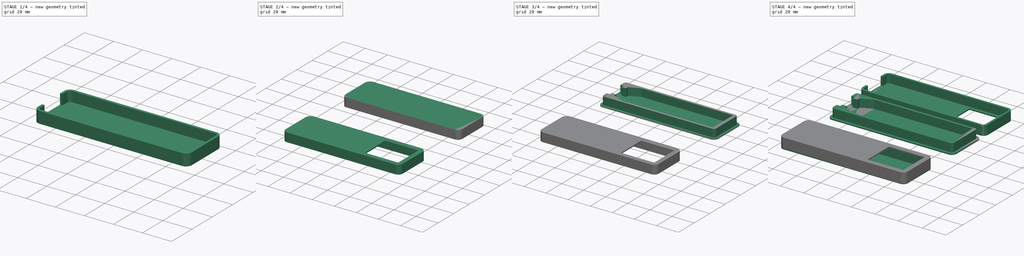
[diagram: build sequence overview — one tinted view per stage of 4, left to right]
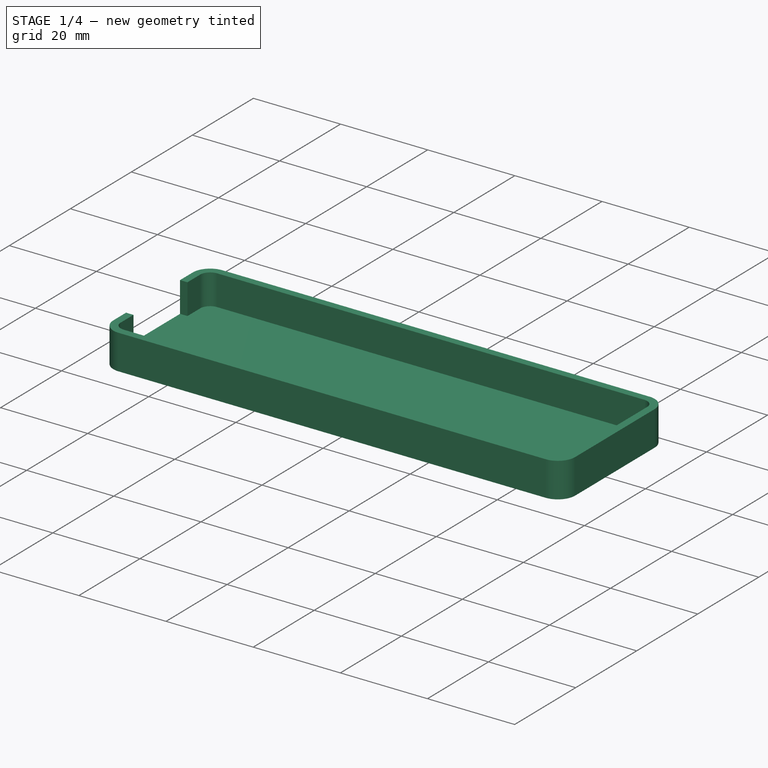
[diagram: stage 1 of 4 — iso view after this stage's code; geometry added in this stage tinted green]
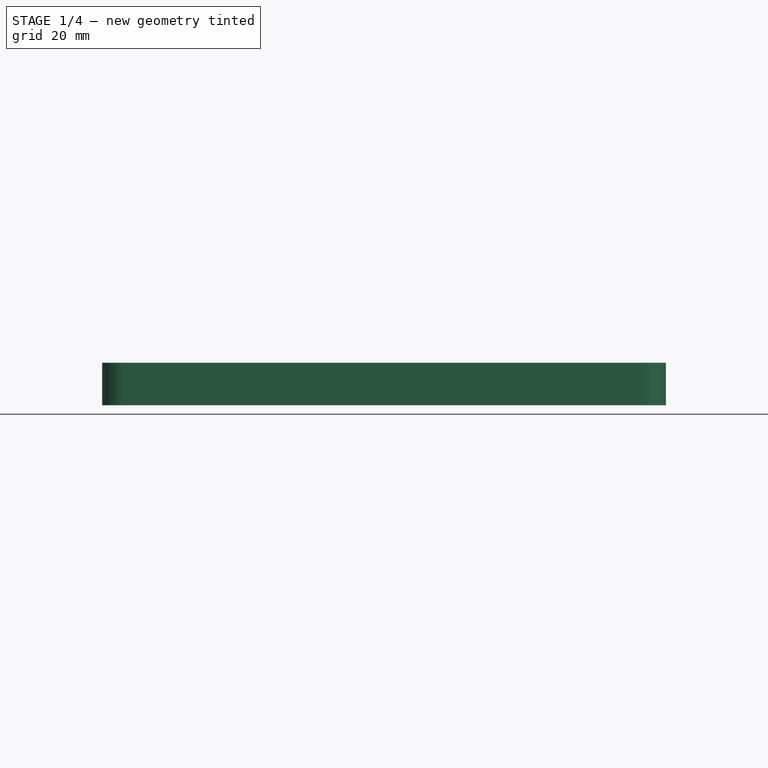
[diagram: stage 1 of 4 — front view after this stage's code; geometry added in this stage tinted green]
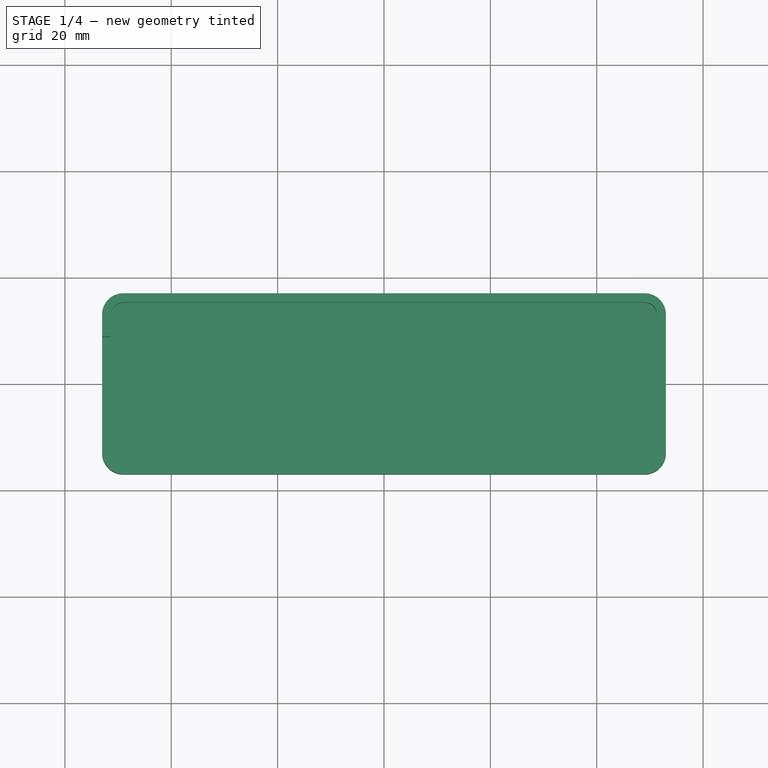
[diagram: stage 1 of 4 — top view after this stage's code; geometry added in this stage tinted green]
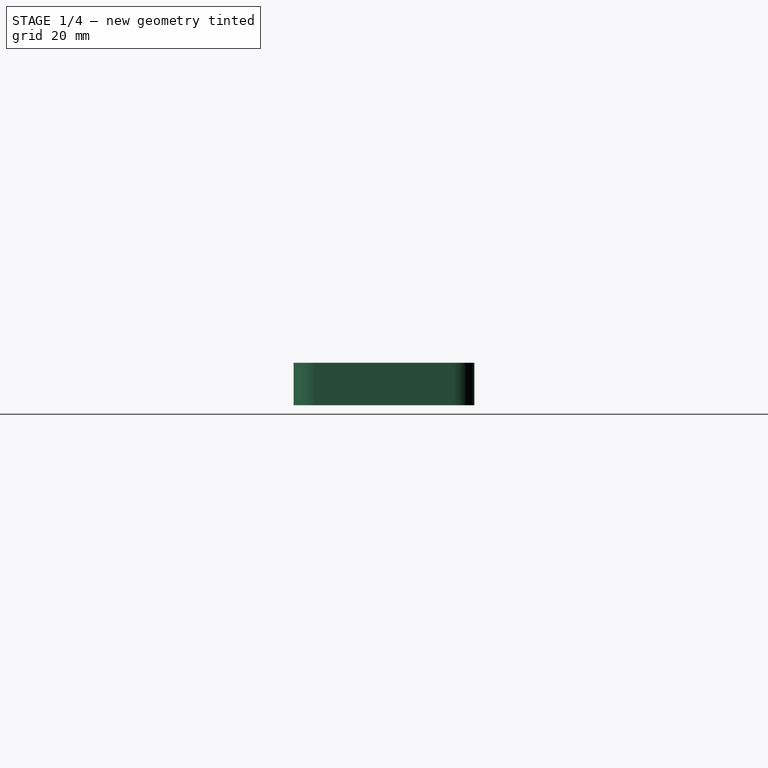
[diagram: stage 1 of 4 — right view after this stage's code; geometry added in this stage tinted green]
FCSTD DOCUMENT  (FreeCAD 0.16R6078 (Git))
Label: icestick-case
License: All rights reserved
LicenseURL: http://en.wikipedia.org/wiki/All_rights_reserved
objects: Sketcher::SketchObject×7, PartDesign::Pocket×5, App::DocumentObjectGroup×5, Part::FeaturePython×4, PartDesign::Pad×2
note: 25 computed .brp shape members not serialized (recipe doc carries the construction recipe); baked Part::Feature solids carry a one-line shape summary decoded from their .brp

FEATURE [Sketcher::SketchObject] Sketch003  label="top-base-sketch"
  sketch-geometry (12):
    g0: LineSegment StartX=-53 StartY=-13 StartZ=0 EndX=-53 EndY=13 EndZ=0
    g1: LineSegment StartX=-49 StartY=-17 StartZ=0 EndX=49 EndY=-17 EndZ=0
    g2: LineSegment StartX=53 StartY=-13 StartZ=0 EndX=53 EndY=13 EndZ=0
    g3: LineSegment StartX=49 StartY=17 StartZ=0 EndX=-49 EndY=17 EndZ=0
    g4: ArcOfCircle CenterX=49 CenterY=-13 CenterZ=0 NormalX=0 NormalY=0 NormalZ=1 Radius=4 StartAngle=4.71239 EndAngle=6.28319
    g5: ArcOfCircle CenterX=49 CenterY=13 CenterZ=0 NormalX=0 NormalY=0 NormalZ=1 Radius=4 StartAngle=0 EndAngle=1.5708
    g6: ArcOfCircle CenterX=-49 CenterY=13 CenterZ=0 NormalX=0 NormalY=0 NormalZ=1 Radius=4 StartAngle=1.5708 EndAngle=3.14159
    g7: ArcOfCircle CenterX=-49 CenterY=-13 CenterZ=0 NormalX=0 NormalY=0 NormalZ=1 Radius=4 StartAngle=3.14159 EndAngle=4.71239
    g8: LineSegment [constr] StartX=-49 StartY=13 StartZ=0 EndX=49 EndY=13 EndZ=0
    g9: LineSegment [constr] StartX=49 StartY=13 StartZ=0 EndX=49 EndY=-13 EndZ=0
    g10: LineSegment [constr] StartX=49 StartY=-13 StartZ=0 EndX=-49 EndY=-13 EndZ=0
    g11: LineSegment [constr] StartX=-49 StartY=-13 StartZ=0 EndX=-49 EndY=13 EndZ=0
  constraints (30):
    c: Vertical(g0)
    c: Horizontal(g1)
    c: Vertical(g2)
    c: Horizontal(g3)
    c: Tangent(g1,g4) = -1.5708
    c: Tangent(g2,g4) = -1.5708
    c: Tangent(g2,g5) = -1.5708
    c: Tangent(g3,g5) = -1.5708
    c: Tangent(g0,g6) = 1.5708
    c: Tangent(g3,g6) = -1.5708
    c: Tangent(g1,g7) = -1.5708
    c: Equal(g7,g6)
    c: Equal(g6,g5)
    c: Symmetric(g4,g5,g-1)
    c: Radius(g4) = 4
    c: Coincident(g0,g7)
    c: Symmetric(g0,g2,g-2)
    c: Coincident(g8,g9)
    c: Coincident(g9,g10)
    c: Coincident(g10,g11)
    c: Coincident(g11,g8)
    c: Horizontal(g8)
    c: Horizontal(g10)
    c: Vertical(g9)
    c: Vertical(g11)
    c: Coincident(g8,g6)
    c: Coincident(g8,g5)
    c: Coincident(g10,g7)
    c: DistanceX(g10) = -98
    c: DistanceY(g9) = -26
FEATURE [PartDesign::Pad] Pad001  label="top-base"
  Length = 8
  Length2 = 100
  Sketch = -> Sketch003
  Type = 0
FEATURE [Sketcher::SketchObject] Sketch004
  Placement = pos=(0,0,8) rot=(0,0,1;0rad)
  Support = -> Pad001 [Face10]
  sketch-geometry (12):
    g0: LineSegment [constr] StartX=-49 StartY=13 StartZ=0 EndX=49 EndY=13 EndZ=0
    g1: LineSegment [constr] StartX=49 StartY=13 StartZ=0 EndX=49 EndY=-13 EndZ=0
    g2: LineSegment [constr] StartX=49 StartY=-13 StartZ=0 EndX=-49 EndY=-13 EndZ=0
    g3: LineSegment [constr] StartX=-49 StartY=-13 StartZ=0 EndX=-49 EndY=13 EndZ=0
    g4: LineSegment StartX=-49 StartY=15.3 StartZ=0 EndX=49 EndY=15.3 EndZ=0
    g5: LineSegment StartX=51.3 StartY=13 StartZ=0 EndX=51.3 EndY=-13 EndZ=0
    g6: LineSegment StartX=49 StartY=-15.3 StartZ=0 EndX=-49 EndY=-15.3 EndZ=0
    g7: LineSegment StartX=-51.3 StartY=-13 StartZ=0 EndX=-51.3 EndY=13 EndZ=0
    g8: ArcOfCircle CenterX=-49 CenterY=13 CenterZ=0 NormalX=0 NormalY=0 NormalZ=1 Radius=2.3 StartAngle=1.5708 EndAngle=3.14159
    g9: ArcOfCircle CenterX=49 CenterY=13 CenterZ=0 NormalX=0 NormalY=0 NormalZ=1 Radius=2.3 StartAngle=0 EndAngle=1.5708
    g10: ArcOfCircle CenterX=-49 CenterY=-13 CenterZ=0 NormalX=0 NormalY=0 NormalZ=1 Radius=2.3 StartAngle=3.14159 EndAngle=4.71239
    g11: ArcOfCircle CenterX=49 CenterY=-13 CenterZ=0 NormalX=0 NormalY=0 NormalZ=1 Radius=2.3 StartAngle=4.71239 EndAngle=6.28319
  constraints (29):
    c: Coincident(g0,g1)
    c: Coincident(g1,g2)
    c: Coincident(g2,g3)
    c: Coincident(g3,g0)
    c: Horizontal(g0)
    c: Horizontal(g2)
    c: Vertical(g1)
    c: Vertical(g3)
    c: DistanceX(g2) = -98
    c: DistanceY(g1) = -26
    c: Symmetric(g0,g0,g-2)
    c: Symmetric(g0,g2,g-1)
    c: Horizontal(g4)
    c: Horizontal(g6)
    c: Vertical(g5)
    c: Tangent(g4,g8) = 1.5708
    c: Tangent(g7,g8) = 1.5708
    c: Tangent(g4,g9) = 1.5708
    c: Tangent(g5,g9) = 1.5708
    c: Coincident(g8,g0)
    c: Coincident(g9,g0)
    c: Radius(g8) = 2.3
    c: Tangent(g6,g10) = 1.5708
    c: Tangent(g7,g10) = 1.5708
    c: Tangent(g5,g11) = 1.5708
    c: Tangent(g6,g11) = 1.5708
    c: Coincident(g10,g2)
    c: Symmetric(g7,g7,g-1)
    c: Coincident(g11,g1)
FEATURE [PartDesign::Pocket] Pocket002
  Length = 7
  Sketch = -> Sketch004
  Type = 0
FEATURE [Sketcher::SketchObject] Sketch005
  Placement = pos=(0,0,8) rot=(0,0,1;0rad)
  Support = -> Pocket002 [Face5]
  sketch-geometry (4):
    g0: LineSegment StartX=-55 StartY=8.85 StartZ=0 EndX=-50 EndY=8.85 EndZ=0
    g1: LineSegment StartX=-50 StartY=8.85 StartZ=0 EndX=-50 EndY=-8.85 EndZ=0
    g2: LineSegment StartX=-50 StartY=-8.85 StartZ=0 EndX=-55 EndY=-8.85 EndZ=0
    g3: LineSegment StartX=-55 StartY=-8.85 StartZ=0 EndX=-55 EndY=8.85 EndZ=0
  constraints (12):
    c: Coincident(g0,g1)
    c: Coincident(g1,g2)
    c: Coincident(g2,g3)
    c: Coincident(g3,g0)
    c: Horizontal(g0)
    c: Horizontal(g2)
    c: Vertical(g1)
    c: Vertical(g3)
    c: Symmetric(g0,g2,g-1)
    c: DistanceY(g3) = 17.7
    c: DistanceX(g0) = 5
    c: DistanceX(g-1,g1) = -50
FEATURE [PartDesign::Pocket] Pocket003
  Length = 7
  Sketch = -> Sketch005
  Type = 0
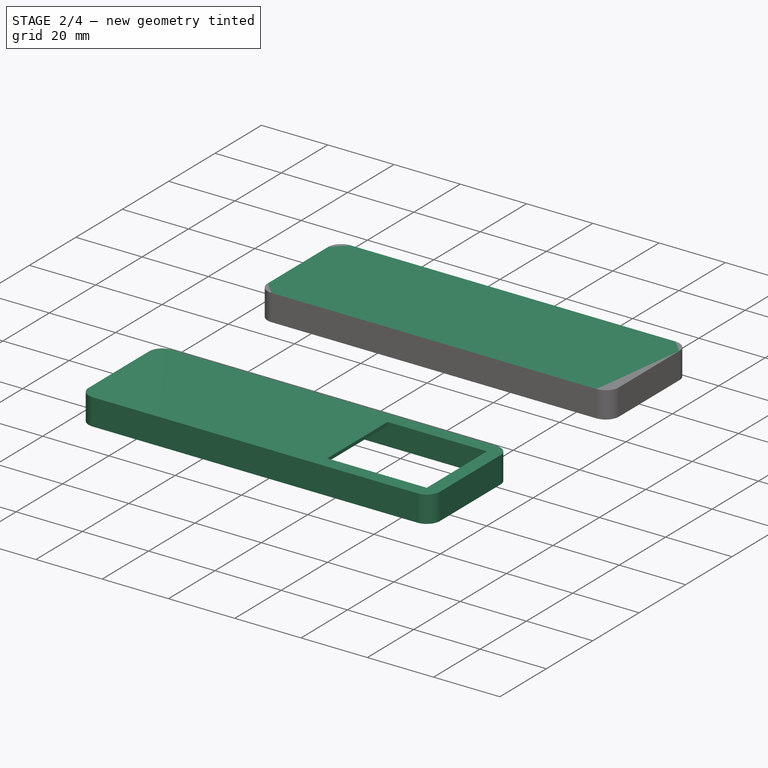
[diagram: stage 2 of 4 — iso view after this stage's code; geometry added in this stage tinted green]
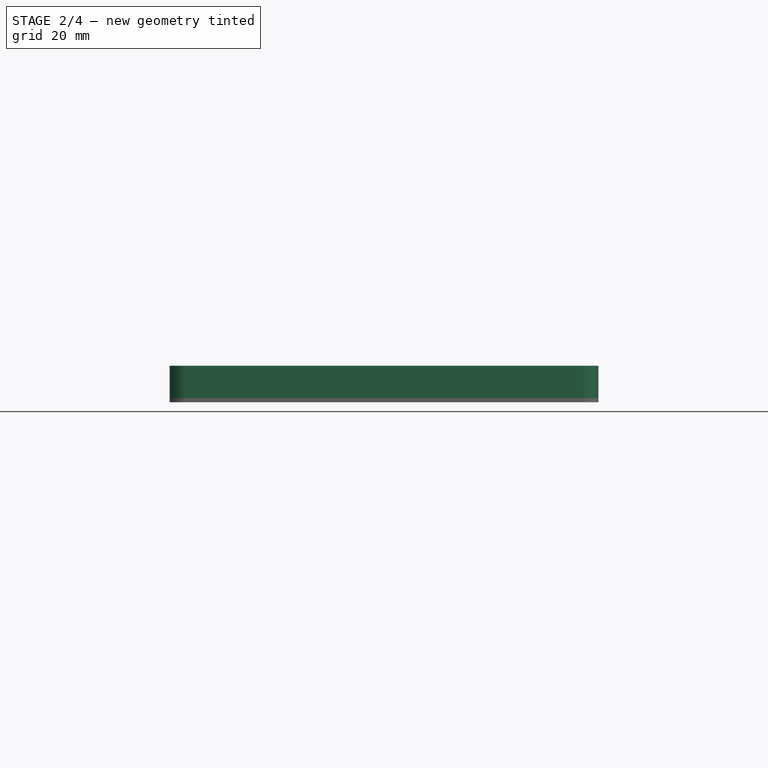
[diagram: stage 2 of 4 — front view after this stage's code; geometry added in this stage tinted green]
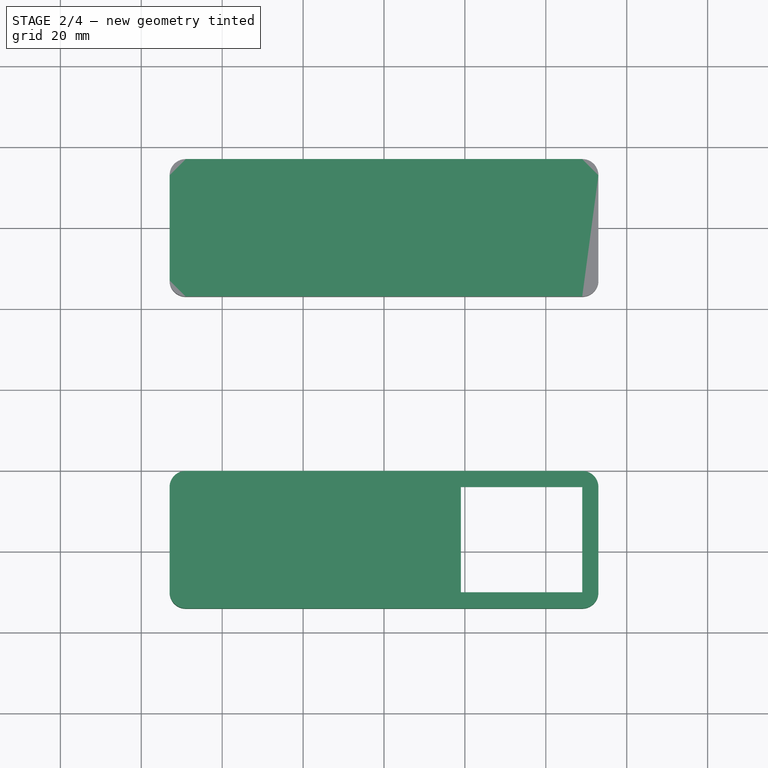
[diagram: stage 2 of 4 — top view after this stage's code; geometry added in this stage tinted green]
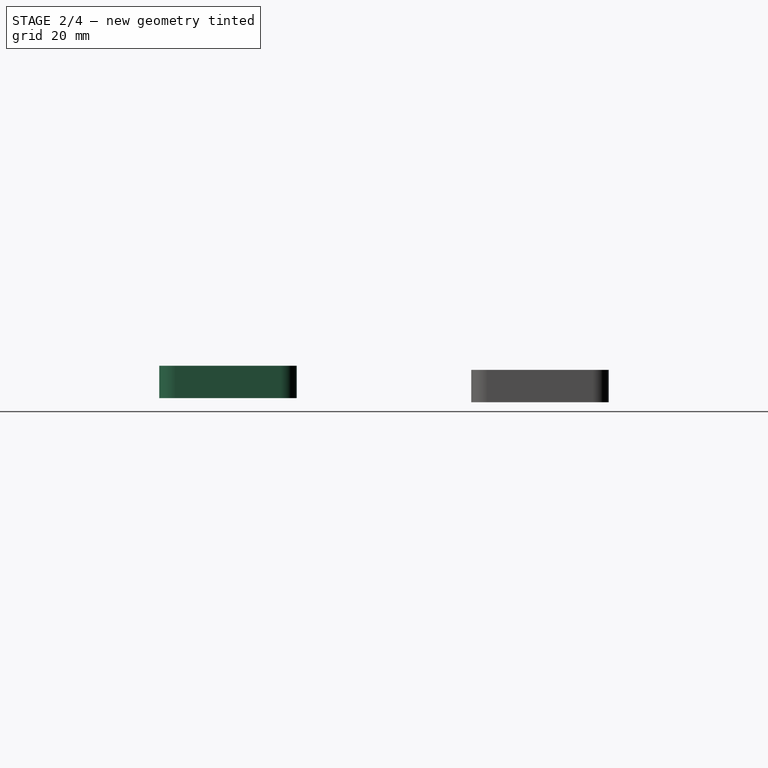
[diagram: stage 2 of 4 — right view after this stage's code; geometry added in this stage tinted green]
FEATURE [Sketcher::SketchObject] Sketch001
  sketch-geometry (12):
    g0: LineSegment StartX=-53 StartY=-13 StartZ=0 EndX=-53 EndY=13 EndZ=0
    g1: LineSegment StartX=-49 StartY=-17 StartZ=0 EndX=49 EndY=-17 EndZ=0
    g2: LineSegment StartX=53 StartY=-13 StartZ=0 EndX=53 EndY=13 EndZ=0
    g3: LineSegment StartX=49 StartY=17 StartZ=0 EndX=-49 EndY=17 EndZ=0
    g4: ArcOfCircle CenterX=49 CenterY=-13 CenterZ=0 NormalX=0 NormalY=0 NormalZ=1 Radius=4 StartAngle=4.71239 EndAngle=6.28319
    g5: ArcOfCircle CenterX=49 CenterY=13 CenterZ=0 NormalX=0 NormalY=0 NormalZ=1 Radius=4 StartAngle=0 EndAngle=1.5708
    g6: ArcOfCircle CenterX=-49 CenterY=13 CenterZ=0 NormalX=0 NormalY=0 NormalZ=1 Radius=4 StartAngle=1.5708 EndAngle=3.14159
    g7: ArcOfCircle CenterX=-49 CenterY=-13 CenterZ=0 NormalX=0 NormalY=0 NormalZ=1 Radius=4 StartAngle=3.14159 EndAngle=4.71239
    g8: LineSegment [constr] StartX=-49 StartY=13 StartZ=0 EndX=49 EndY=13 EndZ=0
    g9: LineSegment [constr] StartX=49 StartY=13 StartZ=0 EndX=49 EndY=-13 EndZ=0
    g10: LineSegment [constr] StartX=49 StartY=-13 StartZ=0 EndX=-49 EndY=-13 EndZ=0
    g11: LineSegment [constr] StartX=-49 StartY=-13 StartZ=0 EndX=-49 EndY=13 EndZ=0
  constraints (30):
    c: Vertical(g0)
    c: Horizontal(g1)
    c: Vertical(g2)
    c: Horizontal(g3)
    c: Tangent(g1,g4) = -1.5708
    c: Tangent(g2,g4) = -1.5708
    c: Tangent(g2,g5) = -1.5708
    c: Tangent(g3,g5) = -1.5708
    c: Tangent(g0,g6) = 1.5708
    c: Tangent(g3,g6) = -1.5708
    c: Tangent(g1,g7) = -1.5708
    c: Equal(g7,g6)
    c: Equal(g6,g5)
    c: Symmetric(g4,g5,g-1)
    c: Radius(g4) = 4
    c: Coincident(g0,g7)
    c: Symmetric(g0,g2,g-2)
    c: Coincident(g8,g9)
    c: Coincident(g9,g10)
    c: Coincident(g10,g11)
    c: Coincident(g11,g8)
    c: Horizontal(g8)
    c: Horizontal(g10)
    c: Vertical(g9)
    c: Vertical(g11)
    c: Coincident(g8,g6)
    c: Coincident(g8,g5)
    c: Coincident(g10,g7)
    c: DistanceX(g10) = -98
    c: DistanceY(g9) = -26
FEATURE [PartDesign::Pad] Pad  label="Base"
  Length = 8
  Length2 = 100
  Sketch = -> Sketch001
  Type = 0
FEATURE [Sketcher::SketchObject] Sketch006
  Placement = pos=(0,0,1) rot=(0,0,1;0rad)
  Support = -> Pocket003 [Face22]
  sketch-geometry (8):
    g0: LineSegment [constr] StartX=-49 StartY=13 StartZ=0 EndX=49 EndY=13 EndZ=0
    g1: LineSegment [constr] StartX=49 StartY=13 StartZ=0 EndX=49 EndY=-13 EndZ=0
    g2: LineSegment [constr] StartX=49 StartY=-13 StartZ=0 EndX=-49 EndY=-13 EndZ=0
    g3: LineSegment [constr] StartX=-49 StartY=-13 StartZ=0 EndX=-49 EndY=13 EndZ=0
    g4: LineSegment StartX=19 StartY=13 StartZ=0 EndX=49 EndY=13 EndZ=0
    g5: LineSegment StartX=49 StartY=13 StartZ=0 EndX=49 EndY=-13 EndZ=0
    g6: LineSegment StartX=49 StartY=-13 StartZ=0 EndX=19 EndY=-13 EndZ=0
    g7: LineSegment StartX=19 StartY=-13 StartZ=0 EndX=19 EndY=13 EndZ=0
  constraints (24):
    c: Coincident(g0,g1)
    c: Coincident(g1,g2)
    c: Coincident(g2,g3)
    c: Coincident(g3,g0)
    c: Horizontal(g0)
    c: Horizontal(g2)
    c: Vertical(g1)
    c: Vertical(g3)
    c: Symmetric(g0,g2,g-1)
    c: DistanceY(g3) = 26
    c: DistanceX(g2) = -98
    c: Symmetric(g0,g0,g-2)
    c: Coincident(g4,g5)
    c: Coincident(g5,g6)
    c: Coincident(g6,g7)
    c: Coincident(g7,g4)
    c: Horizontal(g4)
    c: Horizontal(g6)
    c: Vertical(g5)
    c: Vertical(g7)
    c: Symmetric(g4,g6,g-1)
    c: PointOnObject(g5,g1)
    c: DistanceX(g4) = 30
    c: PointOnObject(g4,g0)
FEATURE [PartDesign::Pocket] Pocket004  label="top-box"
  Length = 5
  Sketch = -> Sketch006
  Type = 1
FEATURE [Part::FeaturePython] Clone003  label="Top-part-clone2"  # Draft clone (typed FeaturePython)
  Objects = -> [Pocket004]
  Placement = pos=(0,-77.1136,9) rot=(1,0,0;3.14159rad)
  Scale = (1,1,1)
FEATURE [App::DocumentObjectGroup] Group004  label="Assembly"
  Group = -> [Clone002,Clone003]
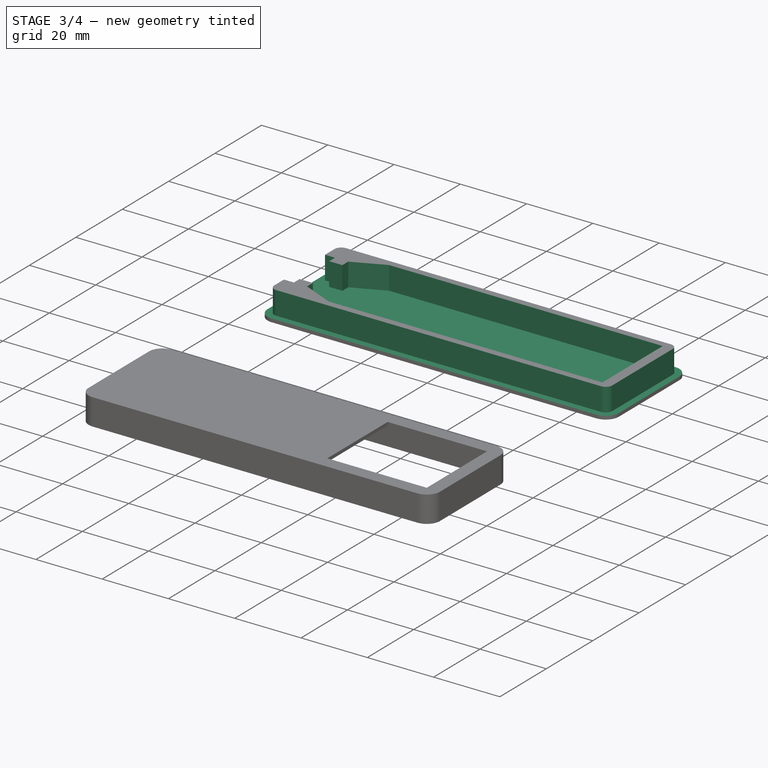
[diagram: stage 3 of 4 — iso view after this stage's code; geometry added in this stage tinted green]
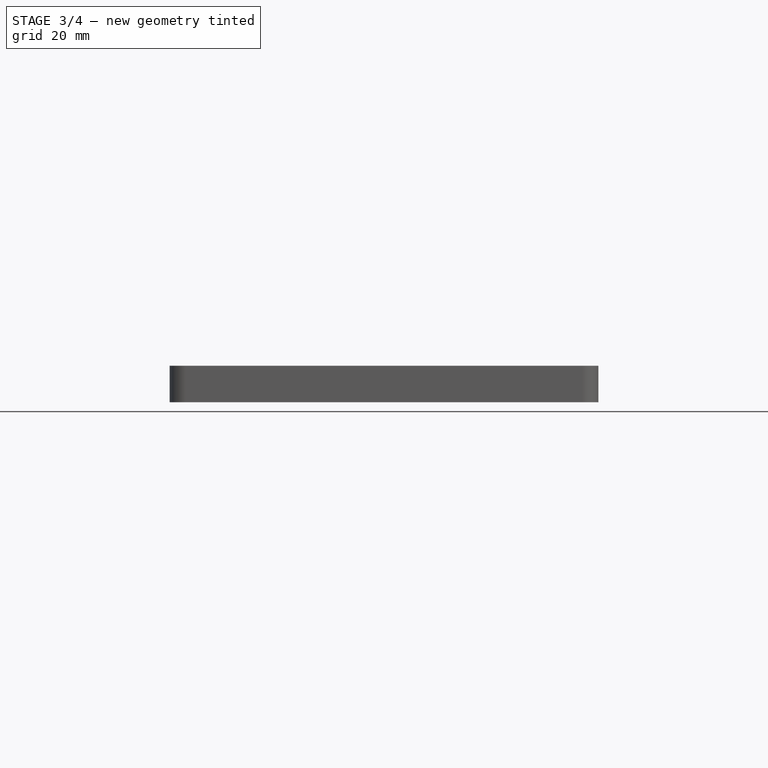
[diagram: stage 3 of 4 — front view after this stage's code; geometry added in this stage tinted green]
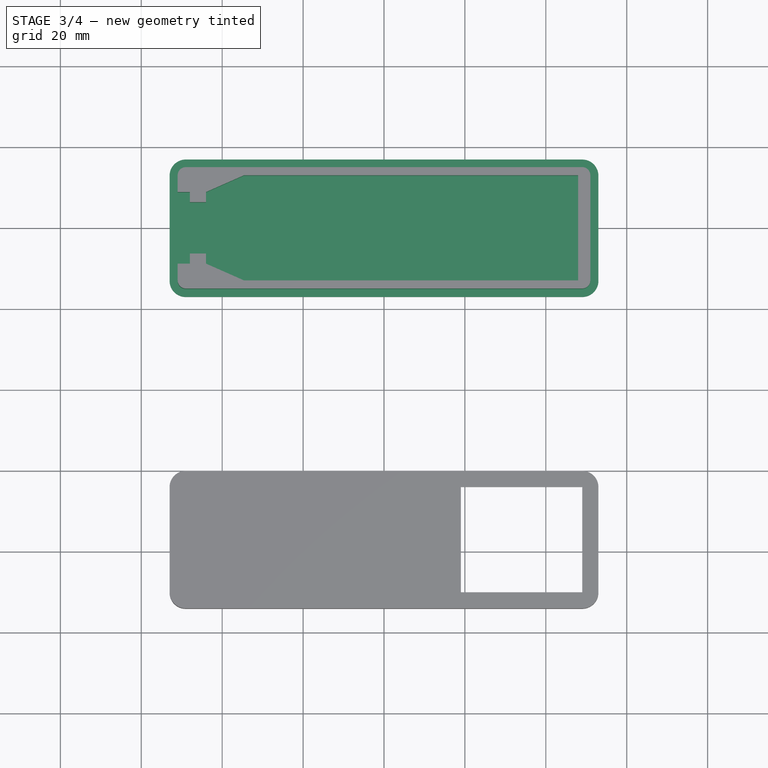
[diagram: stage 3 of 4 — top view after this stage's code; geometry added in this stage tinted green]
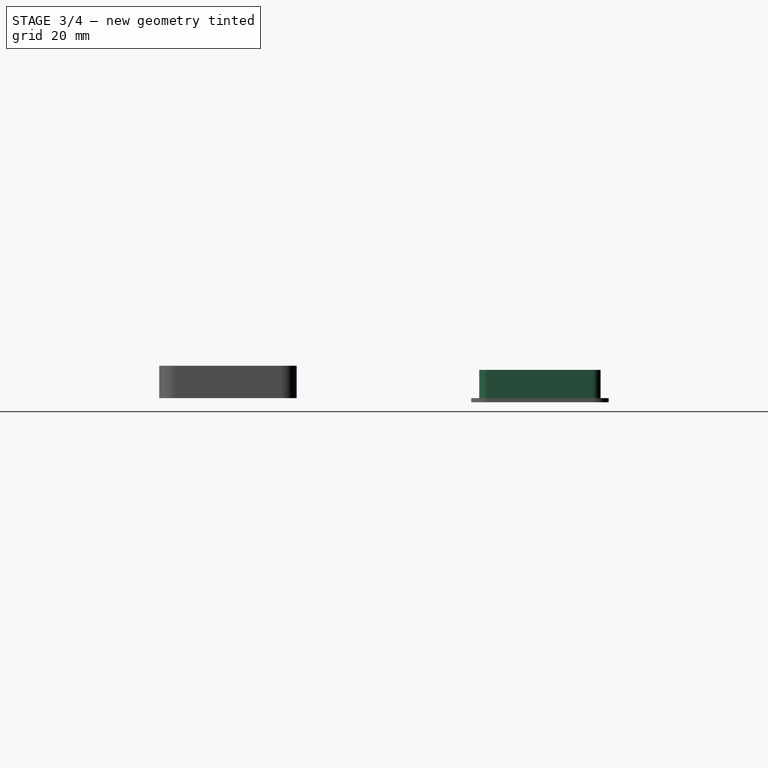
[diagram: stage 3 of 4 — right view after this stage's code; geometry added in this stage tinted green]
FEATURE [Sketcher::SketchObject] Sketch
  Placement = pos=(0,0,8) rot=(0,0,1;0rad)
  Support = -> Pad [Face10]
  sketch-geometry (16):
    g0: LineSegment [constr] StartX=-49 StartY=13 StartZ=0 EndX=49 EndY=13 EndZ=0
    g1: LineSegment [constr] StartX=49 StartY=13 StartZ=0 EndX=49 EndY=-13 EndZ=0
    g2: LineSegment [constr] StartX=49 StartY=-13 StartZ=0 EndX=-49 EndY=-13 EndZ=0
    g3: LineSegment [constr] StartX=-49 StartY=-13 StartZ=0 EndX=-49 EndY=13 EndZ=0
    g4: LineSegment StartX=-49 StartY=15 StartZ=0 EndX=49 EndY=15 EndZ=0
    g5: LineSegment StartX=51 StartY=13 StartZ=0 EndX=51 EndY=-13 EndZ=0
    g6: LineSegment StartX=49 StartY=-15 StartZ=0 EndX=-49 EndY=-15 EndZ=0
    g7: LineSegment StartX=-51 StartY=-13 StartZ=0 EndX=-51 EndY=13 EndZ=0
    g8: ArcOfCircle CenterX=-49 CenterY=13 CenterZ=0 NormalX=0 NormalY=0 NormalZ=1 Radius=2 StartAngle=1.5708 EndAngle=3.14159
    g9: ArcOfCircle CenterX=49 CenterY=13 CenterZ=0 NormalX=0 NormalY=0 NormalZ=1 Radius=2 StartAngle=0 EndAngle=1.5708
    g10: ArcOfCircle CenterX=-49 CenterY=-13 CenterZ=0 NormalX=0 NormalY=0 NormalZ=1 Radius=2 StartAngle=3.14159 EndAngle=4.71239
    g11: ArcOfCircle CenterX=49 CenterY=-13 CenterZ=0 NormalX=0 NormalY=0 NormalZ=1 Radius=2 StartAngle=4.71239 EndAngle=6.28319
    g12: LineSegment StartX=-57 StartY=21 StartZ=0 EndX=57 EndY=21 EndZ=0
    g13: LineSegment StartX=57 StartY=21 StartZ=0 EndX=57 EndY=-21 EndZ=0
    g14: LineSegment StartX=57 StartY=-21 StartZ=0 EndX=-57 EndY=-21 EndZ=0
    g15: LineSegment StartX=-57 StartY=-21 StartZ=0 EndX=-57 EndY=21 EndZ=0
  constraints (39):
    c: Coincident(g0,g1)
    c: Coincident(g1,g2)
    c: Coincident(g2,g3)
    c: Coincident(g3,g0)
    c: Horizontal(g2)
    c: Vertical(g3)
    c: DistanceX(g0) = 98
    c: DistanceY(g1) = -26
    c: Symmetric(g0,g0,g-2)
    c: Symmetric(g0,g1,g-1)
    c: Horizontal(g4)
    c: Horizontal(g6)
    c: Vertical(g5)
    c: Vertical(g7)
    c: Tangent(g4,g8) = 1.5708
    c: Tangent(g7,g8) = 1.5708
    c: Tangent(g4,g9) = 1.5708
    c: Tangent(g5,g9) = 1.5708
    c: Coincident(g8,g0)
    c: Radius(g8) = 2
    c: Coincident(g9,g0)
    c: Tangent(g6,g10) = 1.5708
    c: Tangent(g7,g10) = 1.5708
    c: Coincident(g10,g2)
    c: Tangent(g5,g11) = 1.5708
    c: Tangent(g6,g11) = 1.5708
    c: Coincident(g1,g11)
    c: Coincident(g12,g13)
    c: Coincident(g13,g14)
    c: Coincident(g14,g15)
    c: Coincident(g15,g12)
    c: Horizontal(g12)
    c: Horizontal(g14)
    c: Vertical(g13)
    c: Vertical(g15)
    c: Symmetric(g12,g12,g-2)
    c: Symmetric(g12,g14,g-1)
    c: DistanceY(g4,g12) = 6
    c: DistanceX(g5,g12) = 6
FEATURE [PartDesign::Pocket] Pocket
  Length = 7
  Sketch = -> Sketch
  Type = 0
FEATURE [Sketcher::SketchObject] Sketch002
  ExternalGeometry = -> [Pocket]
  Placement = pos=(0,0,8) rot=(0,0,1;0rad)
  Support = -> Pocket [Face19]
  sketch-geometry (17):
    g0: LineSegment StartX=-34.6 StartY=13 StartZ=0 EndX=48 EndY=13 EndZ=0
    g1: LineSegment StartX=48 StartY=13 StartZ=0 EndX=48 EndY=-13 EndZ=0
    g2: LineSegment StartX=-44 StartY=-8.85 StartZ=0 EndX=-34.6 EndY=-13 EndZ=0
    g3: LineSegment StartX=-34.6 StartY=-13 StartZ=0 EndX=48 EndY=-13 EndZ=0
    g4: LineSegment StartX=-34.6 StartY=13 StartZ=0 EndX=-44 EndY=8.85 EndZ=0
    g5: LineSegment StartX=-44 StartY=8.85 StartZ=0 EndX=-44 EndY=6.35 EndZ=0
    g6: LineSegment StartX=-44 StartY=6.35 StartZ=0 EndX=-48 EndY=6.35 EndZ=0
    g7: LineSegment StartX=-48 StartY=6.35 StartZ=0 EndX=-48 EndY=8.85 EndZ=0
    g8: LineSegment StartX=-48 StartY=8.85 StartZ=0 EndX=-53 EndY=8.85 EndZ=0
    g9: LineSegment StartX=-53 StartY=-8.85 StartZ=0 EndX=-48 EndY=-8.85 EndZ=0
    g10: LineSegment StartX=-48 StartY=-8.85 StartZ=0 EndX=-48 EndY=-6.35 EndZ=0
    g11: LineSegment StartX=-48 StartY=-6.35 StartZ=0 EndX=-44 EndY=-6.35 EndZ=0
    g12: LineSegment StartX=-44 StartY=-6.35 StartZ=0 EndX=-44 EndY=-8.85 EndZ=0
    g13: LineSegment [constr] StartX=-53 StartY=-8.85 StartZ=0 EndX=-53 EndY=8.85 EndZ=0
    g14: LineSegment StartX=-53 StartY=8.85 StartZ=0 EndX=-58 EndY=8.85 EndZ=0
    g15: LineSegment StartX=-58 StartY=8.85 StartZ=0 EndX=-58 EndY=-8.85 EndZ=0
    g16: LineSegment StartX=-58 StartY=-8.85 StartZ=0 EndX=-53 EndY=-8.85 EndZ=0
  constraints (48):
    c: Horizontal(g0)
    c: Coincident(g0,g1)
    c: Vertical(g1)
    c: Coincident(g3,g2)
    c: Coincident(g3,g1)
    c: Horizontal(g3)
    c: Coincident(g0,g4)
    c: Coincident(g5,g4)
    c: Vertical(g5)
    c: Coincident(g5,g6)
    c: Horizontal(g6)
    c: Coincident(g6,g7)
    c: Vertical(g7)
    c: Coincident(g7,g8)
    c: Horizontal(g8)
    c: Horizontal(g9)
    c: Coincident(g9,g10)
    c: Vertical(g10)
    c: Coincident(g10,g11)
    c: Coincident(g11,g12)
    c: Coincident(g12,g2)
    c: Vertical(g12)
    c: Horizontal(g11)
    c: DistanceY(g0,g1) = -26
    c: DistanceX(g6) = -4
    c: DistanceX(g4,g0) = 9.4
    c: DistanceX(g8) = -5
    c: DistanceY(g5,g11) = -12.7
    c: DistanceY(g7) = 2.5
    c: PointOnObject(g4,g8)
    c: Symmetric(g0,g1,g-1)
    c: Symmetric(g4,g2,g-1)
    c: Symmetric(g11,g5,g-1)
    c: Symmetric(g9,g7,g-1)
    c: Symmetric(g2,g0,g-1)
    c: Symmetric(g9,g8,g-1)
    c: Coincident(g13,g9)
    c: Coincident(g13,g8)
    c: Coincident(g8,g14)
    c: Horizontal(g14)
    c: Coincident(g14,g15)
    c: Vertical(g15)
    c: Coincident(g15,g16)
    c: Coincident(g16,g9)
    c: Horizontal(g16)
    c: PointOnObject(g9,g-3)
    c: DistanceX(g2,g1) = 92
    c: DistanceX(g15,g9) = 5
FEATURE [PartDesign::Pocket] Pocket001  label="bottom-box"
  Length = 7
  Sketch = -> Sketch002
  Type = 0
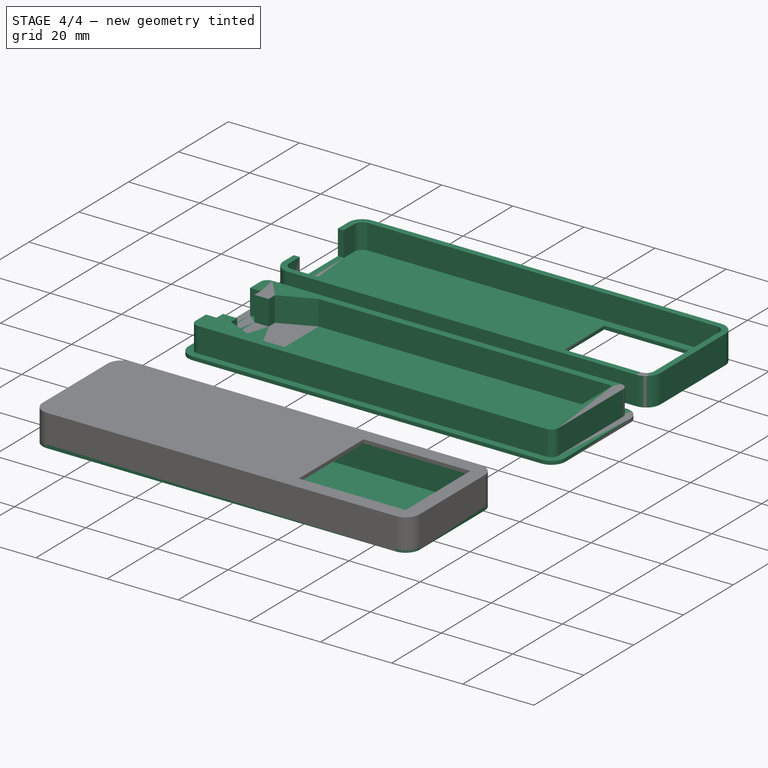
[diagram: stage 4 of 4 — iso view after this stage's code; geometry added in this stage tinted green]
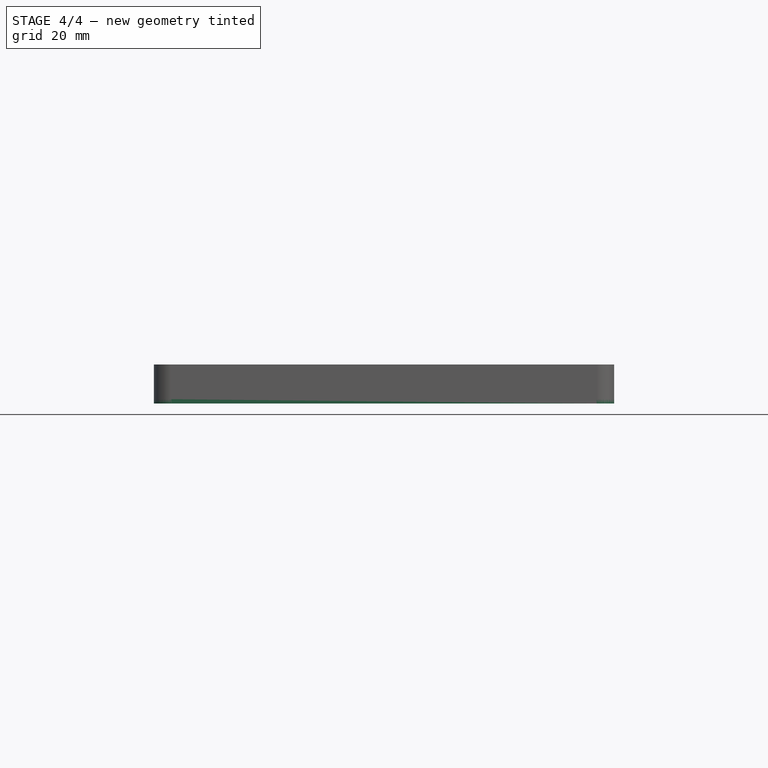
[diagram: stage 4 of 4 — front view after this stage's code; geometry added in this stage tinted green]
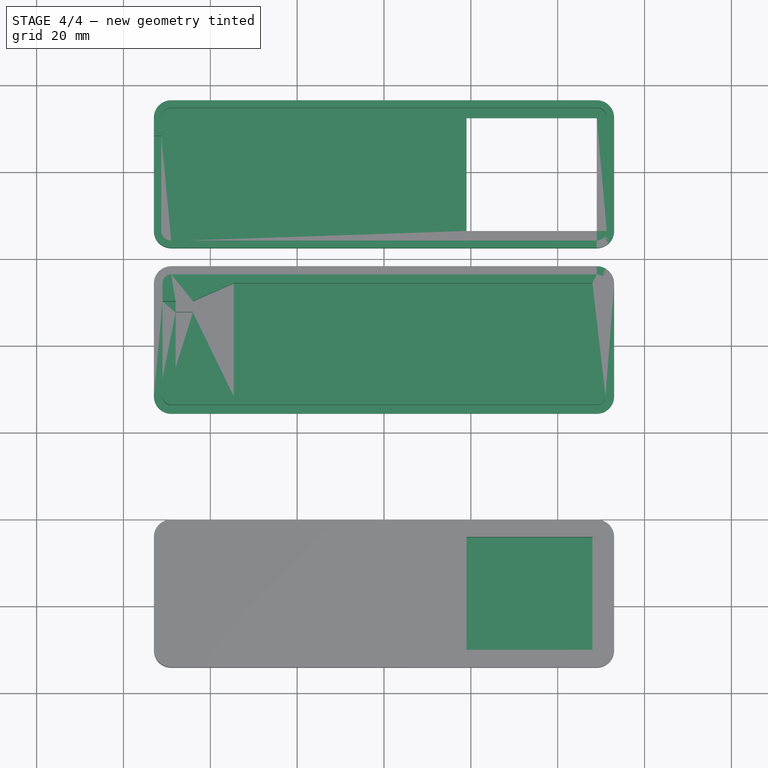
[diagram: stage 4 of 4 — top view after this stage's code; geometry added in this stage tinted green]
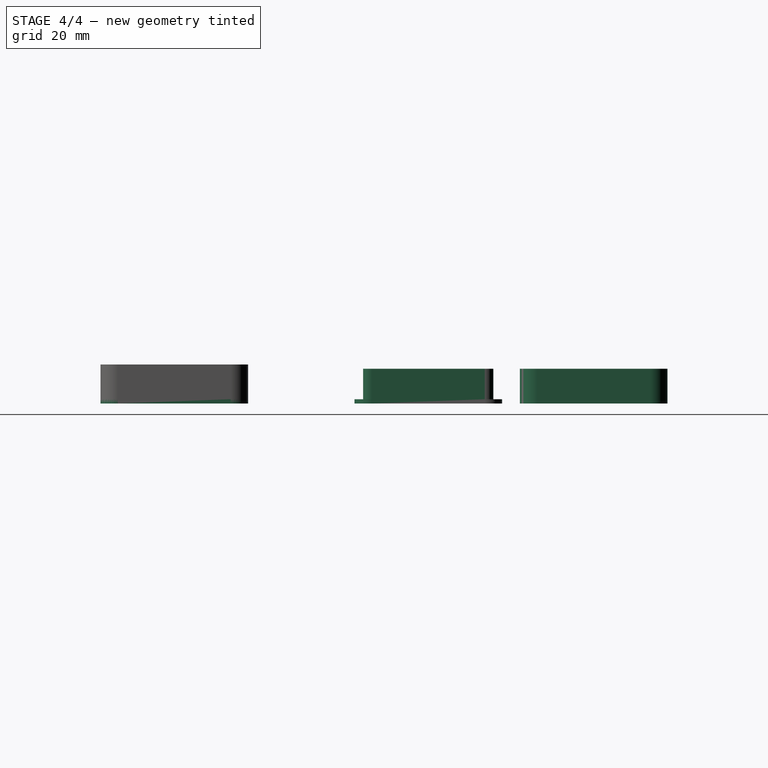
[diagram: stage 4 of 4 — right view after this stage's code; geometry added in this stage tinted green]
FEATURE [App::DocumentObjectGroup] Group001  label="Bottom-part"
  Group = -> [Pad,Pocket,Pocket001]
FEATURE [App::DocumentObjectGroup] Group002  label="Top-part"
  Group = -> [Pad001,Pocket002,Pocket003,Pocket004]
FEATURE [App::DocumentObjectGroup] Group  label="src"
  Group = -> [Group001,Group002]
FEATURE [Part::FeaturePython] Clone  label="Bottom-part-clone"  # Draft clone (typed FeaturePython)
  Objects = -> [Pocket001]
  Placement = pos=(0,-18.6182,0) rot=(0,0,1;0rad)
  Scale = (1,1,1)
FEATURE [Part::FeaturePython] Clone001  label="top-part-clone"  # Draft clone (typed FeaturePython)
  Objects = -> [Pocket004]
  Placement = pos=(0,19.4831,0) rot=(0,0,1;0rad)
  Scale = (1,1,1)
FEATURE [App::DocumentObjectGroup] Group003  label="printing-plate"
  Group = -> [Clone,Clone001]
FEATURE [Part::FeaturePython] Clone002  label="Bottom-part-clone2"  # Draft clone (typed FeaturePython)
  Objects = -> [Pocket001]
  Placement = pos=(0,-77.1136,0) rot=(0,0,1;0rad)
  Scale = (1,1,1)
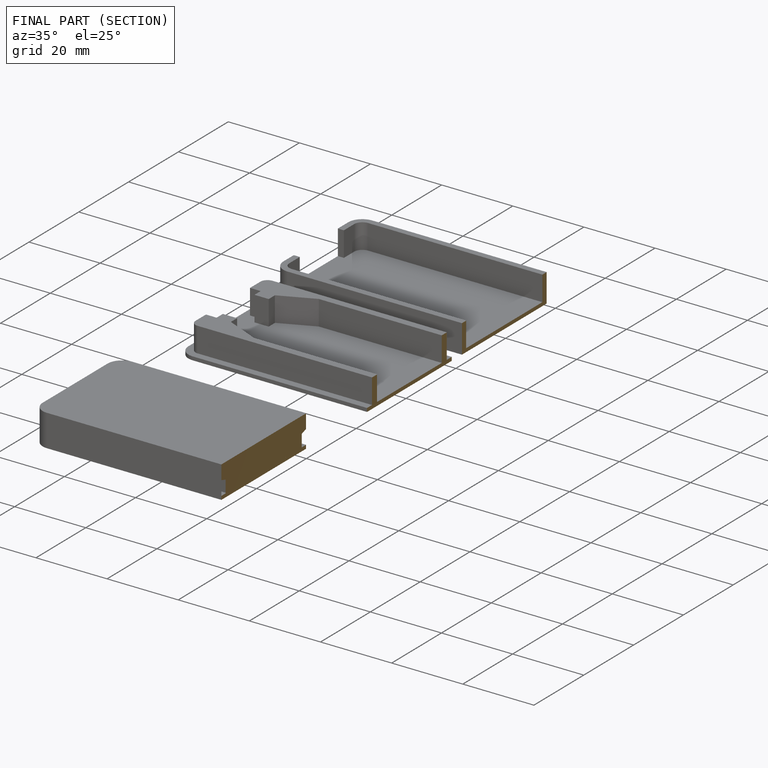
[diagram: finished part — half-section view (interior)]
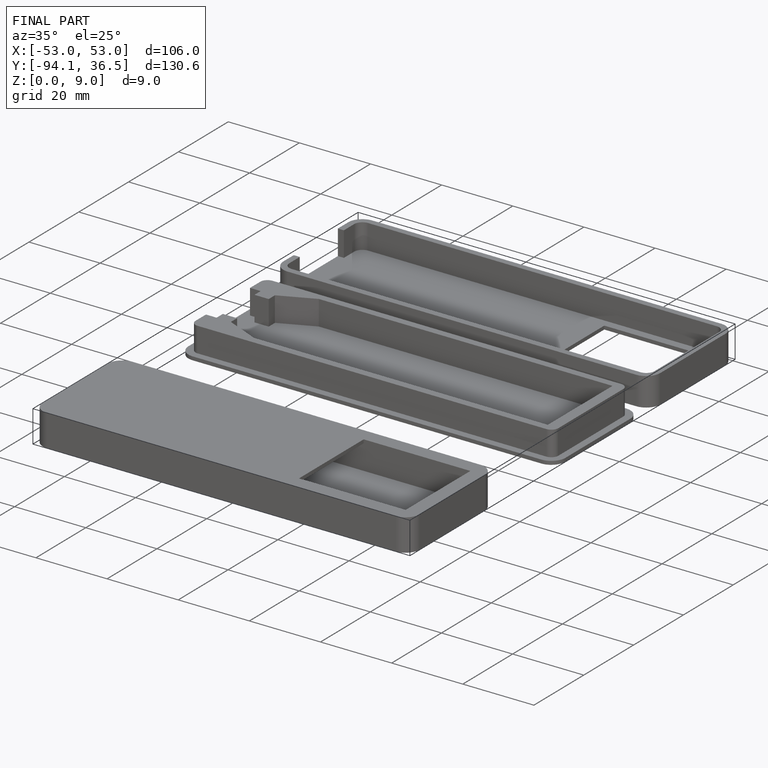
[diagram: finished part — iso view with bounding-box wireframe]
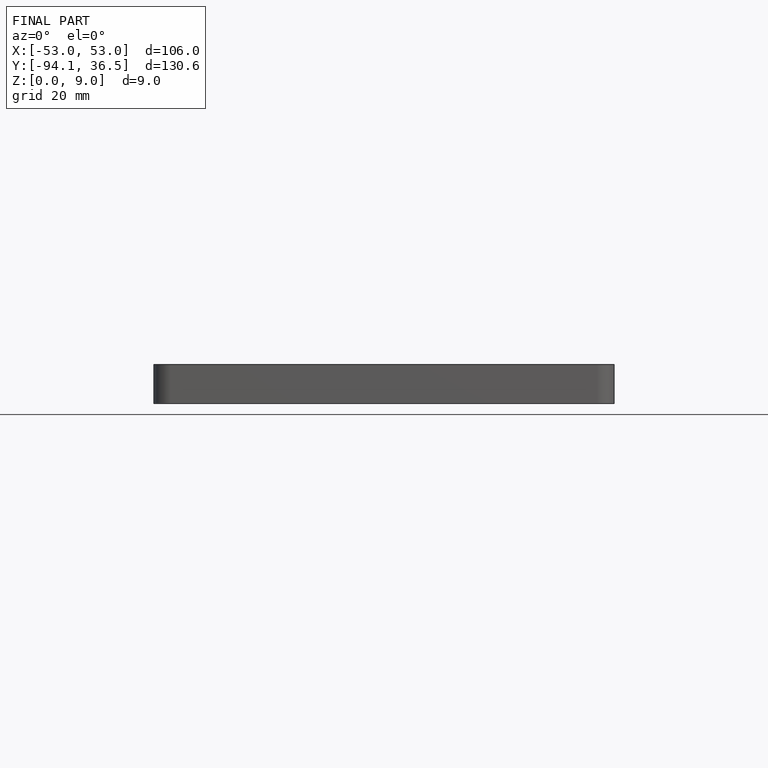
[diagram: finished part — front view with bounding-box wireframe]
